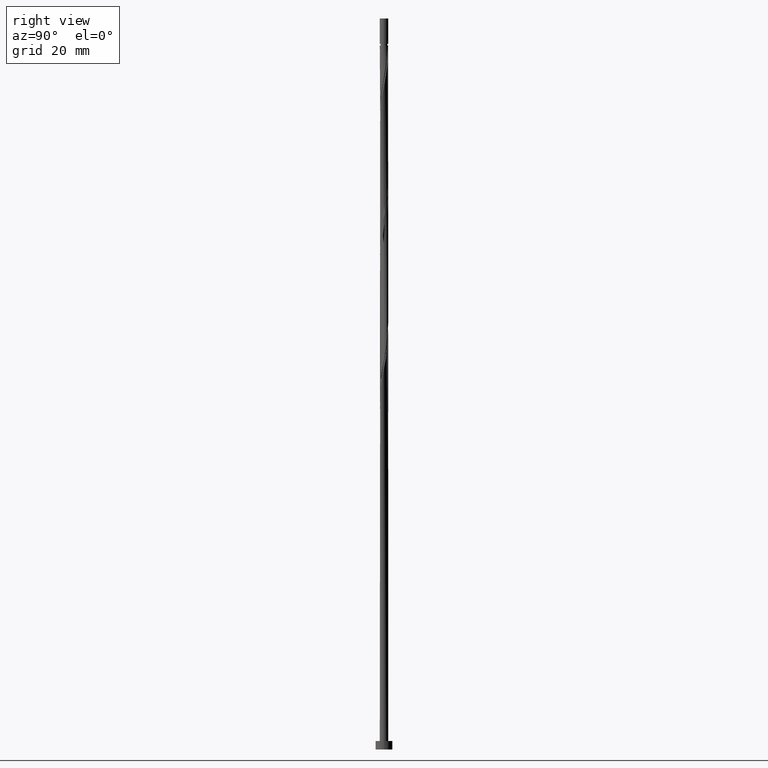
[diagram: clean part render]
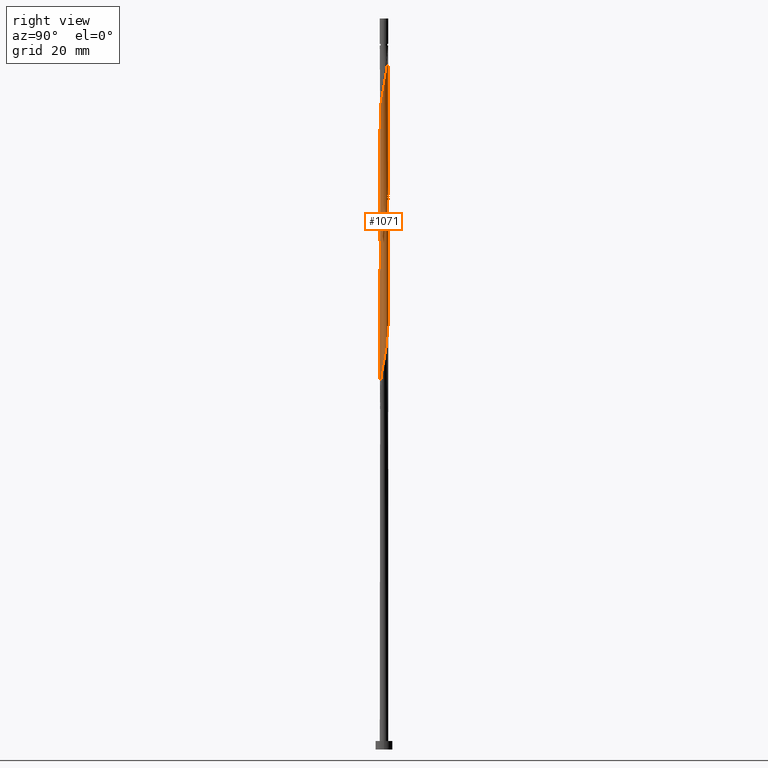
[diagram: same view with one face highlighted and labeled with its STEP entity id]
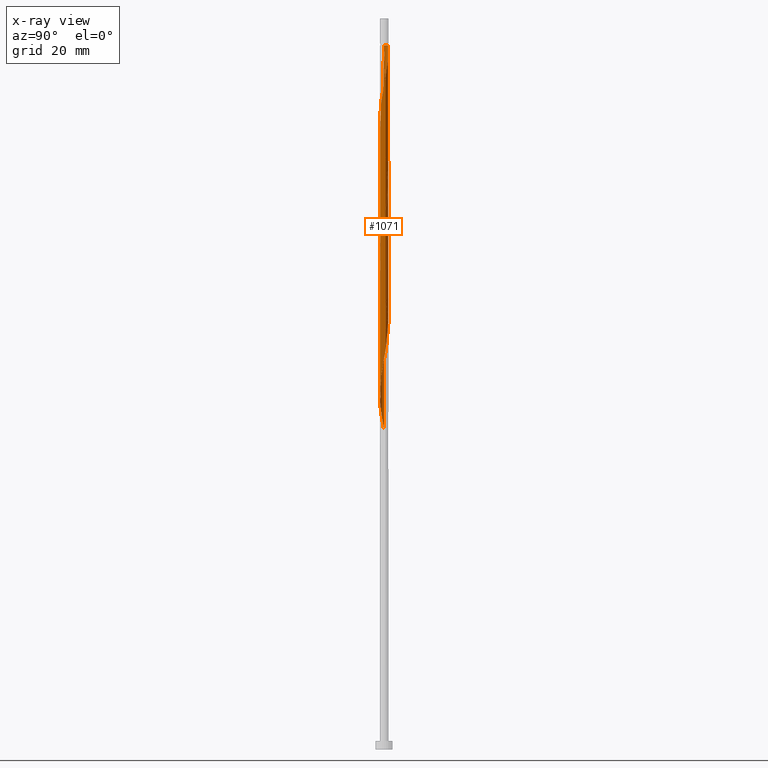
[diagram: x-ray of the same camera — body ghosted, the highlighted face saturated]
A machine part, right view. The second image highlights one B-rep face of the part: STEP entity #1071.
The next image is the same camera in x-ray: the body ghosted, the highlighted face saturated — about 0% of this face is hidden behind the body in this view.
In plain terms, the highlighted cylindrical surface (bore or boss wall) has radius 1 mm, axis along (-0, -0, -1).
Its self-contained STEP definition (entity closure, byte-faithful):
#2 = CARTESIAN_POINT ( 'NONE',  ( 0.4458594766673680820, 0.8951029700910975162, 98.06985771338651148 ) ) ;
#11 = CARTESIAN_POINT ( 'NONE',  ( 0.5522521727681091175, -0.8336771183575245603, 86.95874660227542563 ) ) ;
#35 = CARTESIAN_POINT ( 'NONE',  ( 0.9063824962005113672, -0.4424964979548786648, 154.3198577133865399 ) ) ;
#36 = ORIENTED_EDGE ( 'NONE', *, *, #1288, .T. ) ;
#44 = CARTESIAN_POINT ( 'NONE',  ( -0.06997803978568405137, 1.006198516232634788, 165.4309688244976826 ) ) ;
#46 = CARTESIAN_POINT ( 'NONE',  ( -1.000000000000001332, -6.990894227392392190E-16, 140.0618466137320013 ) ) ;
#52 = CARTESIAN_POINT ( 'NONE',  ( 0.7609717405145360880, -0.6620078475813410135, 152.9309688244976257 ) ) ;
#58 = DIRECTION ( 'NONE',  ( -1.000000000000000000, 0.000000000000000000, 0.000000000000000000 ) ) ;
#60 = CARTESIAN_POINT ( 'NONE',  ( 0.7492061519980856010, 0.6623368793961457168, 160.5698577133865967 ) ) ;
#78 = CARTESIAN_POINT ( 'NONE',  ( -0.6620078475813406804, 0.7609717405145367541, 104.3198577133865399 ) ) ;
#81 = VECTOR ( 'NONE', #1470, 1000.000000000000000 ) ;
#86 = CARTESIAN_POINT ( 'NONE',  ( 0.1989974874213304434, 0.9800000000000007594, 99.45874660227543984 ) ) ;
#98 = VERTEX_POINT ( 'NONE', #302 ) ;
#108 = CARTESIAN_POINT ( 'NONE',  ( 0.6620078475813405694, -0.7609717405145368652, 87.65319104671989692 ) ) ;
#113 = VERTEX_POINT ( 'NONE', #46 ) ;
#114 = CARTESIAN_POINT ( 'NONE',  ( 1.000000000000001776, 1.207518093822335680E-15, 125.5223132574855640 ) ) ;
#116 = CARTESIAN_POINT ( 'NONE',  ( 0.06997803978568188643, -1.006198516232634788, 148.7643021578309970 ) ) ;
#118 = ORIENTED_EDGE ( 'NONE', *, *, #401, .T. ) ;
#120 = CARTESIAN_POINT ( 'NONE',  ( -0.1928297432528294497, 0.9900247826383190564, 134.8754132689420828 ) ) ;
#123 = CARTESIAN_POINT ( 'NONE',  ( 0.7492061519980848239, -0.6623368793961468270, 88.34763549116431136 ) ) ;
#130 = CARTESIAN_POINT ( 'NONE',  ( -0.9981116494354770330, -0.06142585173357345552, 75.84763549116429715 ) ) ;
#136 = CARTESIAN_POINT ( 'NONE',  ( 0.8336771183575244493, 0.5522521727681093395, 95.29207993560875423 ) ) ;
#154 = CARTESIAN_POINT ( 'NONE',  ( -1.000000000000000000, 0.000000000000000000, 172.5099999999999909 ) ) ;
#196 = CARTESIAN_POINT ( 'NONE',  ( -1.000000000000000000, 0.000000000000000000, 172.5099999999999909 ) ) ;
#209 = CARTESIAN_POINT ( 'NONE',  ( -0.4424964979548783872, 0.9063824962005120334, 102.9309688244976400 ) ) ;
#218 = CARTESIAN_POINT ( 'NONE',  ( 0.06997803978568227501, 1.006198516232635010, 100.1531910467198685 ) ) ;
#226 = CARTESIAN_POINT ( 'NONE',  ( -0.06997803978568256644, -1.006198516232635010, 116.8198577133865683 ) ) ;
#232 = CARTESIAN_POINT ( 'NONE',  ( 0.4424964979548781097, -0.9063824962005121444, 119.5976354911643398 ) ) ;
#237 = CARTESIAN_POINT ( 'NONE',  ( 0.3176631206038535438, -0.9482036394194154338, 118.9031910467198685 ) ) ;
#243 = CARTESIAN_POINT ( 'NONE',  ( 0.06997803978568227501, 1.006198516232635010, 133.4865243800532255 ) ) ;
#247 = CARTESIAN_POINT ( 'NONE',  ( -0.4424964979548786648, -0.9063824962005115893, 145.9865243800532255 ) ) ;
#251 = CARTESIAN_POINT ( 'NONE',  ( -0.8951029700910976272, 0.4458594766673675824, 139.7365243800532255 ) ) ;
#252 = CARTESIAN_POINT ( 'NONE',  ( -0.7609717405145368652, -0.6620078475813406804, 79.31985771338656832 ) ) ;
#258 = CARTESIAN_POINT ( 'NONE',  ( 0.6623368793961468270, 0.7492061519980847129, 130.0143021578309686 ) ) ;
#259 = CARTESIAN_POINT ( 'NONE',  ( -0.3176631206038542654, -0.9482036394194152118, 146.6809688244977110 ) ) ;
#263 = CARTESIAN_POINT ( 'NONE',  ( -0.9538014837673658430, 0.3280169350569784315, 140.4309688244976542 ) ) ;
#264 = VECTOR ( 'NONE', #1510, 1000.000000000000000 ) ;
#265 = VERTEX_POINT ( 'NONE', #1204 ) ;
#266 = CARTESIAN_POINT ( 'NONE',  ( 0.1989974874213301104, -0.9800000000000002043, 149.4587466022754541 ) ) ;
#275 = CARTESIAN_POINT ( 'NONE',  ( 0.000000000000000000, 0.000000000000000000, 172.5099999999999909 ) ) ;
#276 = DIRECTION ( 'NONE',  ( -1.000000000000000000, 0.000000000000000000, 0.000000000000000000 ) ) ;
#293 = CARTESIAN_POINT ( 'NONE',  ( 0.9981116494354770330, 0.06142585173357311551, 125.8476354911643114 ) ) ;
#297 = CARTESIAN_POINT ( 'NONE',  ( 0.9800000000000002043, 0.1989974874213300826, 157.7920799356088253 ) ) ;
#302 = CARTESIAN_POINT ( 'NONE',  ( -0.1989974874213630285, 0.9800000000002668799, 166.1254132689421681 ) ) ;
#309 = CARTESIAN_POINT ( 'NONE',  ( -0.1989974874213630285, 0.9800000000002668799, 166.1254132689421397 ) ) ;
#327 = VECTOR ( 'NONE', #955, 1000.000000000000000 ) ;
#350 = CARTESIAN_POINT ( 'NONE',  ( -0.1989974874213303602, -0.9800000000000007594, 116.1254132689420970 ) ) ;
#370 = CARTESIAN_POINT ( 'NONE',  ( -1.006198516232635010, 0.06997803978568252481, 108.4865243800532113 ) ) ;
#377 = CARTESIAN_POINT ( 'NONE',  ( -0.7492061519980850459, 0.6623368793961466050, 138.3476354911643114 ) ) ;
#380 = CARTESIAN_POINT ( 'NONE',  ( -0.8951029700910976272, -0.4458594766673671939, 142.5143021578309401 ) ) ;
#389 = CARTESIAN_POINT ( 'NONE',  ( 0.6623368793961468270, 0.7492061519980847129, 96.68096882449763996 ) ) ;
#393 = CARTESIAN_POINT ( 'NONE',  ( -0.4424964979548783872, 0.9063824962005120334, 136.2643021578309686 ) ) ;
#397 = CARTESIAN_POINT ( 'NONE',  ( -1.000000000000001776, 0.1005037815259250816, 141.6555535549628928 ) ) ;
#398 = CARTESIAN_POINT ( 'NONE',  ( -1.000000000000001776, 1.342102153814917990E-15, 75.52231325748550717 ) ) ;
#401 = EDGE_CURVE ( 'NONE', #1527, #818, #758, .T. ) ;
#410 = CARTESIAN_POINT ( 'NONE',  ( -0.5637020182777566779, -0.8364044564148297445, 80.70874660227543984 ) ) ;
#416 =( BOUNDED_CURVE ( )  B_SPLINE_CURVE ( 2, ( #1003, #900, #655, #1485, #380, #1356, #1136, #1625, #1368, #247, #259, #778, #1142, #116, #266, #1614, #785, #1052, #1547, #52, #797, #35, #1045, #692, #458, #1420, #297, #1196, #1398, #824, #60, #1295, #1072, #956, #1267, #1156, #942, #44, #309 ),
 .UNSPECIFIED., .F., .T. ) 
 B_SPLINE_CURVE_WITH_KNOTS ( ( 3, 2, 2, 2, 2, 2, 2, 2, 2, 2, 2, 2, 2, 2, 2, 2, 2, 2, 2, 3 ),
 ( 0.5545317669814456840, 0.5625000000000000000, 0.5729166666666667407, 0.5833333333333332593, 0.5937500000000000000, 0.6041666666666667407, 0.6145833333333333703, 0.6250000000000001110, 0.6354166666666668517, 0.6458333333333333703, 0.6562500000000001110, 0.6666666666666668517, 0.6770833333333333703, 0.6875000000000001110, 0.6979166666666669627, 0.7083333333333334814, 0.7187500000000002220, 0.7291666666666669627, 0.7395833333333334814, 0.7500000000000002220 ),
 .UNSPECIFIED. ) 
 CURVE ( )  GEOMETRIC_REPRESENTATION_ITEM ( )  RATIONAL_B_SPLINE_CURVE ( ( 0.9062941362546443891, 0.9031415850403479162, 0.9090909090909236046, 0.9013135103398420833, 0.9090909090909236046, 0.9013135103398420833, 0.9090909090909236046, 0.9013135103398420833, 0.9090909090909236046, 0.9013135103398420833, 0.9090909090909236046, 0.9013135103398420833, 0.9090909090909236046, 0.9013135103398420833, 0.9090909090909236046, 0.9013135103398420833, 0.9090909090909236046, 0.9013135103398420833, 0.9090909090909236046, 0.9013135103398420833, 0.9090909090909236046, 0.9013135103398420833, 0.9090909090909236046, 0.9013135103398420833, 0.9090909090909236046, 0.9013135103398420833, 0.9090909090909236046, 0.9013135103398420833, 0.9090909090909236046, 0.9013135103398420833, 0.9090909090909236046, 0.9013135103398420833, 0.9090909090909236046, 0.9013135103398420833, 0.9090909090909236046, 0.9013135103398420833, 0.9090909090909236046, 0.9013135103398418613, 0.9090909090909238266 ) ) 
 REPRESENTATION_ITEM ( '' )  );
#420 = EDGE_LOOP ( 'NONE', ( #773, #750, #473, #36, #1268, #1249, #118, #839 ) ) ;
#427 = CARTESIAN_POINT ( 'NONE',  ( 0.9482036394194157669, 0.3176631206038533772, 127.2365243800531971 ) ) ;
#458 = CARTESIAN_POINT ( 'NONE',  ( 0.9981116494354764779, -0.06142585173357436451, 156.4031910467198543 ) ) ;
#467 = CARTESIAN_POINT ( 'NONE',  ( 1.000000000000000000, 1.224646799147353207E-16, 172.5099999999999909 ) ) ;
#473 = ORIENTED_EDGE ( 'NONE', *, *, #592, .F. ) ;
#476 = CARTESIAN_POINT ( 'NONE',  ( -0.06142585173357356654, 0.9981116494354770330, 100.8476354911643398 ) ) ;
#481 = CARTESIAN_POINT ( 'NONE',  ( -0.9063824962005121444, -0.4424964979548781097, 111.2643021578309970 ) ) ;
#487 = EDGE_CURVE ( 'NONE', #818, #816, #1345, .T. ) ;
#489 = CARTESIAN_POINT ( 'NONE',  ( -0.3280169350569786535, -0.9538014837673658430, 115.4309688244976542 ) ) ;
#496 = EDGE_CURVE ( 'NONE', #265, #98, #1306, .T. ) ;
#499 = CARTESIAN_POINT ( 'NONE',  ( 0.8951029700910975162, -0.4458594766673680820, 123.0698577133865541 ) ) ;
#507 = CARTESIAN_POINT ( 'NONE',  ( 0.5637020182777571220, 0.8364044564148295224, 97.37541326894209703 ) ) ;
#520 = CARTESIAN_POINT ( 'NONE',  ( -0.1989974874213303602, -0.9800000000000007594, 82.79207993560874002 ) ) ;
#527 = CARTESIAN_POINT ( 'NONE',  ( 0.9538014837673656210, -0.3280169350569790976, 90.43096882449765417 ) ) ;
#536 = CARTESIAN_POINT ( 'NONE',  ( -1.000000000000001776, -3.813215033123163800E-16, 142.1889799241521928 ) ) ;
#539 = CARTESIAN_POINT ( 'NONE',  ( 0.9063824962005122554, 0.4424964979548778321, 94.59763549116433978 ) ) ;
#548 = AXIS2_PLACEMENT_3D ( 'NONE', #646, #1123, #276 ) ;
#556 = CARTESIAN_POINT ( 'NONE',  ( 0.9900247826383190564, 0.1928297432528287836, 126.5420799356087542 ) ) ;
#592 = EDGE_CURVE ( 'NONE', #113, #98, #416, .T. ) ;
#621 = CARTESIAN_POINT ( 'NONE',  ( 0.9800000000000007594, -0.1989974874213303879, 124.4587466022754398 ) ) ;
#633 = CARTESIAN_POINT ( 'NONE',  ( 0.8951029700910975162, -0.4458594766673680820, 89.73652438005319709 ) ) ;
#639 = CARTESIAN_POINT ( 'NONE',  ( 0.1989974874213304434, 0.9800000000000007594, 132.7920799356087684 ) ) ;
#646 = CARTESIAN_POINT ( 'NONE',  ( 0.000000000000000000, 0.000000000000000000, 166.1254132689420828 ) ) ;
#653 = CARTESIAN_POINT ( 'NONE',  ( 0.7609717405145368652, 0.6620078475813405694, 129.3198577133865399 ) ) ;
#655 = CARTESIAN_POINT ( 'NONE',  ( -0.9800000000000002043, -0.1989974874213301659, 141.1254132689421397 ) ) ;
#663 = CARTESIAN_POINT ( 'NONE',  ( -0.4458594766673675824, -0.8951029700910976272, 81.40319104671986850 ) ) ;
#692 = CARTESIAN_POINT ( 'NONE',  ( 0.9900247826383185012, -0.1928297432528299216, 155.7087466022753972 ) ) ;
#704 = CARTESIAN_POINT ( 'NONE',  ( 1.000000000000000000, 1.224646799147353207E-16, 166.1254132689421681 ) ) ;
#726 = CARTESIAN_POINT ( 'NONE',  ( 0.8364044564148296335, -0.5637020182777571220, 122.3754132689420686 ) ) ;
#734 = CARTESIAN_POINT ( 'NONE',  ( -0.9538014837673658430, 0.3280169350569784315, 107.0976354911643256 ) ) ;
#749 = CARTESIAN_POINT ( 'NONE',  ( -0.9482036394194154338, -0.3176631206038535993, 110.5698577133865541 ) ) ;
#750 = ORIENTED_EDGE ( 'NONE', *, *, #496, .T. ) ;
#758 = LINE ( 'NONE', #467, #81 ) ;
#766 = CARTESIAN_POINT ( 'NONE',  ( -0.9063824962005121444, -0.4424964979548781097, 77.93096882449766838 ) ) ;
#771 = CARTESIAN_POINT ( 'NONE',  ( 0.1928297432528288391, -0.9900247826383190564, 84.87541326894208282 ) ) ;
#773 = ORIENTED_EDGE ( 'NONE', *, *, #1181, .F. ) ;
#778 = CARTESIAN_POINT ( 'NONE',  ( -0.1928297432528295052, -0.9900247826383187233, 147.3754132689420260 ) ) ;
#784 = CARTESIAN_POINT ( 'NONE',  ( -0.06142585173357356654, 0.9981116494354770330, 134.1809688244976826 ) ) ;
#785 = CARTESIAN_POINT ( 'NONE',  ( 0.4458594766673669163, -0.8951029700910977382, 150.8476354911643114 ) ) ;
#797 = CARTESIAN_POINT ( 'NONE',  ( 0.8336771183575240052, -0.5522521727681098946, 153.6254132689420828 ) ) ;
#815 = CARTESIAN_POINT ( 'NONE',  ( 0.8336771183575244493, 0.5522521727681093395, 128.6254132689420544 ) ) ;
#816 = VERTEX_POINT ( 'NONE', #1239 ) ;
#818 = VERTEX_POINT ( 'NONE', #114 ) ;
#824 = CARTESIAN_POINT ( 'NONE',  ( 0.8364044564148299665, 0.5637020182777559008, 159.8754132689420260 ) ) ;
#829 = FACE_OUTER_BOUND ( 'NONE', #420, .T. ) ;
#839 = ORIENTED_EDGE ( 'NONE', *, *, #950, .F. ) ;
#850 = CARTESIAN_POINT ( 'NONE',  ( -0.8336771183575242272, -0.5522521727681094506, 111.9587466022754114 ) ) ;
#858 = CARTESIAN_POINT ( 'NONE',  ( -0.1928297432528294497, 0.9900247826383190564, 101.5420799356087684 ) ) ;
#865 = CARTESIAN_POINT ( 'NONE',  ( -0.9800000000000007594, 0.1989974874213302769, 107.7920799356087969 ) ) ;
#867 =( BOUNDED_CURVE ( )  B_SPLINE_CURVE ( 2, ( #536, #397, #1001, #263, #251, #903, #377, #883, #1251, #393, #1353, #120, #784, #243, #639, #899, #1613, #1367, #258, #653, #815, #1062, #427, #556, #293, #923, #1051 ),
 .UNSPECIFIED., .F., .T. ) 
 B_SPLINE_CURVE_WITH_KNOTS ( ( 3, 2, 2, 2, 2, 2, 2, 2, 2, 2, 2, 2, 2, 3 ),
 ( 0.4295317669814460726, 0.4375000000000000000, 0.4479166666666666852, 0.4583333333333333148, 0.4687500000000000000, 0.4791666666666666852, 0.4895833333333333148, 0.5000000000000000000, 0.5104166666666666297, 0.5208333333333333703, 0.5312500000000000000, 0.5416666666666666297, 0.5520833333333333703, 0.5545317669814459061 ),
 .UNSPECIFIED. ) 
 CURVE ( )  GEOMETRIC_REPRESENTATION_ITEM ( )  RATIONAL_B_SPLINE_CURVE ( ( 0.9062941362546343971, 0.9031415850403382573, 0.9090909090909138346, 0.9013135103398322023, 0.9090909090909138346, 0.9013135103398322023, 0.9090909090909138346, 0.9013135103398322023, 0.9090909090909138346, 0.9013135103398322023, 0.9090909090909138346, 0.9013135103398322023, 0.9090909090909138346, 0.9013135103398322023, 0.9090909090909138346, 0.9013135103398322023, 0.9090909090909138346, 0.9013135103398322023, 0.9090909090909138346, 0.9013135103398322023, 0.9090909090909138346, 0.9013135103398322023, 0.9090909090909138346, 0.9013135103398322023, 0.9090909090909138346, 0.9072628343904078907, 0.9062941362546343971 ) ) 
 REPRESENTATION_ITEM ( '' )  );
#879 = CARTESIAN_POINT ( 'NONE',  ( -0.7492061519980850459, 0.6623368793961466050, 105.0143021578309686 ) ) ;
#883 = CARTESIAN_POINT ( 'NONE',  ( -0.6620078475813406804, 0.7609717405145367541, 137.6531910467198827 ) ) ;
#886 = CARTESIAN_POINT ( 'NONE',  ( 0.9482036394194157669, 0.3176631206038533772, 93.90319104671988271 ) ) ;
#899 = CARTESIAN_POINT ( 'NONE',  ( 0.3280169350569792086, 0.9538014837673656210, 132.0976354911643114 ) ) ;
#900 = CARTESIAN_POINT ( 'NONE',  ( -1.000000000000002442, -0.1005037815259204187, 140.5952729829212728 ) ) ;
#903 = CARTESIAN_POINT ( 'NONE',  ( -0.8364044564148297445, 0.5637020182777565669, 139.0420799356088253 ) ) ;
#914 = CARTESIAN_POINT ( 'NONE',  ( 0.9800000000000007594, -0.1989974874213303879, 91.12541326894208282 ) ) ;
#923 = CARTESIAN_POINT ( 'NONE',  ( 1.000000000000001776, 0.03074195165767222571, 125.6854769455136562 ) ) ;
#942 = CARTESIAN_POINT ( 'NONE',  ( 0.06142585173357440614, 0.9981116494354764779, 164.7365243800531687 ) ) ;
#950 = EDGE_CURVE ( 'NONE', #1348, #818, #867, .T. ) ;
#955 = DIRECTION ( 'NONE',  ( -0.000000000000000000, -0.000000000000000000, -1.000000000000000000 ) ) ;
#956 = CARTESIAN_POINT ( 'NONE',  ( 0.4424964979548787758, 0.9063824962005113672, 162.6531910467198259 ) ) ;
#965 = CARTESIAN_POINT ( 'NONE',  ( 0.06142585173357317102, -0.9981116494354770330, 117.5143021578309828 ) ) ;
#986 = CARTESIAN_POINT ( 'NONE',  ( -0.4458594766673675824, -0.8951029700910976272, 114.7365243800531829 ) ) ;
#996 = CARTESIAN_POINT ( 'NONE',  ( 0.6620078475813405694, -0.7609717405145368652, 120.9865243800532113 ) ) ;
#1001 = CARTESIAN_POINT ( 'NONE',  ( -0.9800000000000007594, 0.1989974874213302769, 141.1254132689420544 ) ) ;
#1003 = CARTESIAN_POINT ( 'NONE',  ( -1.000000000000001332, -6.990894227392392190E-16, 140.0618466137320013 ) ) ;
#1010 = CARTESIAN_POINT ( 'NONE',  ( 0.9900247826383190564, 0.1928297432528287836, 93.20874660227542563 ) ) ;
#1021 = CARTESIAN_POINT ( 'NONE',  ( 0.4424964979548781097, -0.9063824962005121444, 86.26430215783096855 ) ) ;
#1032 = CARTESIAN_POINT ( 'NONE',  ( -0.3280169350569786535, -0.9538014837673658430, 82.09763549116433978 ) ) ;
#1045 = CARTESIAN_POINT ( 'NONE',  ( 0.9482036394194152118, -0.3176631206038544319, 155.0143021578310254 ) ) ;
#1049 = CARTESIAN_POINT ( 'NONE',  ( -1.000000000000001776, -3.813215033123163800E-16, 142.1889799241521928 ) ) ;
#1051 = CARTESIAN_POINT ( 'NONE',  ( 1.000000000000001776, 1.207518093822335877E-15, 125.5223132574855640 ) ) ;
#1052 = CARTESIAN_POINT ( 'NONE',  ( 0.5637020182777559008, -0.8364044564148299665, 151.5420799356087684 ) ) ;
#1062 = CARTESIAN_POINT ( 'NONE',  ( 0.9063824962005122554, 0.4424964979548778321, 127.9309688244976542 ) ) ;
#1071 = ADVANCED_FACE ( 'NONE', ( #829 ), #1386, .T. ) ;
#1072 = CARTESIAN_POINT ( 'NONE',  ( 0.5522521727681097836, 0.8336771183575242272, 161.9587466022753972 ) ) ;
#1076 = LINE ( 'NONE', #196, #327 ) ;
#1086 = CARTESIAN_POINT ( 'NONE',  ( 0.1928297432528288391, -0.9900247826383190564, 118.2087466022754683 ) ) ;
#1102 = CARTESIAN_POINT ( 'NONE',  ( -0.6623368793961468270, -0.7492061519980848239, 113.3476354911643114 ) ) ;
#1108 = CARTESIAN_POINT ( 'NONE',  ( 0.7492061519980848239, -0.6623368793961468270, 121.6809688244976684 ) ) ;
#1114 = CARTESIAN_POINT ( 'NONE',  ( -0.8951029700910976272, 0.4458594766673675824, 106.4031910467198401 ) ) ;
#1123 = DIRECTION ( 'NONE',  ( -0.000000000000000000, -0.000000000000000000, -1.000000000000000000 ) ) ;
#1130 = CARTESIAN_POINT ( 'NONE',  ( 0.06142585173357317102, -0.9981116494354770330, 84.18096882449763996 ) ) ;
#1136 = CARTESIAN_POINT ( 'NONE',  ( -0.7492061519980850459, -0.6623368793961459389, 143.9031910467198827 ) ) ;
#1142 = CARTESIAN_POINT ( 'NONE',  ( -0.06142585173357380940, -0.9981116494354764779, 148.0698577133865115 ) ) ;
#1148 = CARTESIAN_POINT ( 'NONE',  ( -0.6623368793961468270, -0.7492061519980848239, 80.01430215783099698 ) ) ;
#1156 = CARTESIAN_POINT ( 'NONE',  ( 0.1928297432528299771, 0.9900247826383185012, 164.0420799356087684 ) ) ;
#1181 = EDGE_CURVE ( 'NONE', #265, #1348, #1076, .T. ) ;
#1196 = CARTESIAN_POINT ( 'NONE',  ( 0.9538014837673659541, 0.3280169350569778763, 158.4865243800532255 ) ) ;
#1204 = CARTESIAN_POINT ( 'NONE',  ( -0.9999999999999917843, 0.000000000000000000, 166.1254132689420828 ) ) ;
#1209 = CARTESIAN_POINT ( 'NONE',  ( -0.3176631206038537658, 0.9482036394194154338, 102.2365243800532113 ) ) ;
#1217 = CARTESIAN_POINT ( 'NONE',  ( 0.9538014837673656210, -0.3280169350569790976, 123.7643021578310254 ) ) ;
#1228 = CARTESIAN_POINT ( 'NONE',  ( -0.9981116494354770330, -0.06142585173357345552, 109.1809688244976542 ) ) ;
#1235 = CARTESIAN_POINT ( 'NONE',  ( 0.9981116494354770330, 0.06142585173357311551, 92.51430215783101119 ) ) ;
#1239 = CARTESIAN_POINT ( 'NONE',  ( -1.000000000000001776, 1.342102153814917990E-15, 75.52231325748550717 ) ) ;
#1240 = CARTESIAN_POINT ( 'NONE',  ( 0.7609717405145368652, 0.6620078475813405694, 95.98652438005321130 ) ) ;
#1247 = CARTESIAN_POINT ( 'NONE',  ( -0.9900247826383190564, -0.1928297432528291444, 76.54207993560878265 ) ) ;
#1249 = ORIENTED_EDGE ( 'NONE', *, *, #401, .F. ) ;
#1251 = CARTESIAN_POINT ( 'NONE',  ( -0.5522521727681096726, 0.8336771183575242272, 136.9587466022753972 ) ) ;
#1252 = CARTESIAN_POINT ( 'NONE',  ( -0.9482036394194154338, -0.3176631206038535993, 77.23652438005322551 ) ) ;
#1259 = CARTESIAN_POINT ( 'NONE',  ( 0.3176631206038535438, -0.9482036394194154338, 85.56985771338653990 ) ) ;
#1267 = CARTESIAN_POINT ( 'NONE',  ( 0.3176631206038545430, 0.9482036394194151008, 163.3476354911643398 ) ) ;
#1268 = ORIENTED_EDGE ( 'NONE', *, *, #487, .F. ) ;
#1279 = AXIS2_PLACEMENT_3D ( 'NONE', #275, #1301, #58 ) ;
#1283 = LINE ( 'NONE', #154, #264 ) ;
#1288 = EDGE_CURVE ( 'NONE', #113, #816, #1283, .T. ) ;
#1295 = CARTESIAN_POINT ( 'NONE',  ( 0.6620078475813412355, 0.7609717405145354219, 161.2643021578309401 ) ) ;
#1301 = DIRECTION ( 'NONE',  ( -0.000000000000000000, -0.000000000000000000, -1.000000000000000000 ) ) ;
#1306 = CIRCLE ( 'NONE', #548, 0.9999999999999917843 ) ;
#1320 = CARTESIAN_POINT ( 'NONE',  ( -0.5522521727681096726, 0.8336771183575242272, 103.6254132689420828 ) ) ;
#1345 =( BOUNDED_CURVE ( )  B_SPLINE_CURVE ( 2, ( #1588, #1347, #621, #1217, #499, #726, #1108, #996, #1595, #232, #237, #1086, #965, #226, #350, #489, #986, #1582, #1102, #1477, #850, #481, #749, #1447, #1228, #370, #865, #734, #1114, #1603, #879, #78, #1320, #209, #1209, #858, #476, #218, #86, #1497, #2, #507, #389, #1240, #136, #539, #886, #1010, #1235, #1491, #914, #527, #633, #1375, #123, #108, #11, #1021, #1259, #771, #1130, #1502, #520, #1032, #663, #410, #1148, #252, #1515, #766, #1252, #1247, #130, #1390, #398 ),
 .UNSPECIFIED., .F., .T. ) 
 B_SPLINE_CURVE_WITH_KNOTS ( ( 3, 2, 2, 2, 2, 2, 2, 2, 2, 2, 2, 2, 2, 2, 2, 2, 2, 2, 2, 2, 2, 2, 2, 2, 2, 2, 2, 2, 2, 2, 2, 2, 2, 2, 2, 2, 2, 3 ),
 ( 0.5545317669814459061, 0.5625000000000000000, 0.5729166666666666297, 0.5833333333333333703, 0.5937500000000000000, 0.6041666666666666297, 0.6145833333333333703, 0.6250000000000000000, 0.6354166666666666297, 0.6458333333333333703, 0.6562500000000000000, 0.6666666666666666297, 0.6770833333333333703, 0.6875000000000000000, 0.6979166666666666297, 0.7083333333333333703, 0.7187500000000000000, 0.7291666666666666297, 0.7395833333333333703, 0.7500000000000000000, 0.7604166666666666297, 0.7708333333333333703, 0.7812500000000000000, 0.7916666666666666297, 0.8020833333333333703, 0.8125000000000000000, 0.8229166666666666297, 0.8333333333333333703, 0.8437500000000000000, 0.8541666666666666297, 0.8645833333333333703, 0.8750000000000000000, 0.8854166666666666297, 0.8958333333333333703, 0.9062500000000000000, 0.9166666666666666297, 0.9270833333333333703, 0.9295317669814461281 ),
 .UNSPECIFIED. ) 
 CURVE ( )  GEOMETRIC_REPRESENTATION_ITEM ( )  RATIONAL_B_SPLINE_CURVE ( ( 0.9062941362546343971, 0.9031415850403381462, 0.9090909090909138346, 0.9013135103398322023, 0.9090909090909138346, 0.9013135103398322023, 0.9090909090909138346, 0.9013135103398322023, 0.9090909090909138346, 0.9013135103398322023, 0.9090909090909138346, 0.9013135103398322023, 0.9090909090909138346, 0.9013135103398322023, 0.9090909090909138346, 0.9013135103398322023, 0.9090909090909138346, 0.9013135103398322023, 0.9090909090909138346, 0.9013135103398322023, 0.9090909090909138346, 0.9013135103398322023, 0.9090909090909138346, 0.9013135103398322023, 0.9090909090909138346, 0.9013135103398322023, 0.9090909090909138346, 0.9013135103398322023, 0.9090909090909138346, 0.9013135103398322023, 0.9090909090909138346, 0.9013135103398322023, 0.9090909090909138346, 0.9013135103398322023, 0.9090909090909138346, 0.9013135103398322023, 0.9090909090909138346, 0.9013135103398322023, 0.9090909090909138346, 0.9013135103398322023, 0.9090909090909138346, 0.9013135103398322023, 0.9090909090909138346, 0.9013135103398322023, 0.9090909090909138346, 0.9013135103398322023, 0.9090909090909138346, 0.9013135103398322023, 0.9090909090909138346, 0.9013135103398322023, 0.9090909090909138346, 0.9013135103398322023, 0.9090909090909138346, 0.9013135103398322023, 0.9090909090909138346, 0.9013135103398322023, 0.9090909090909138346, 0.9013135103398322023, 0.9090909090909138346, 0.9013135103398322023, 0.9090909090909138346, 0.9013135103398322023, 0.9090909090909138346, 0.9013135103398322023, 0.9090909090909138346, 0.9013135103398322023, 0.9090909090909138346, 0.9013135103398322023, 0.9090909090909138346, 0.9013135103398322023, 0.9090909090909138346, 0.9013135103398322023, 0.9090909090909138346, 0.9072628343904076686, 0.9062941362546341750 ) ) 
 REPRESENTATION_ITEM ( '' )  );
#1347 = CARTESIAN_POINT ( 'NONE',  ( 1.000000000000002220, -0.1005037815259225698, 124.9888868882962356 ) ) ;
#1348 = VERTEX_POINT ( 'NONE', #1049 ) ;
#1353 = CARTESIAN_POINT ( 'NONE',  ( -0.3176631206038537658, 0.9482036394194154338, 135.5698577133865399 ) ) ;
#1356 = CARTESIAN_POINT ( 'NONE',  ( -0.8364044564148296335, -0.5637020182777562338, 143.2087466022754256 ) ) ;
#1367 = CARTESIAN_POINT ( 'NONE',  ( 0.5637020182777571220, 0.8364044564148295224, 130.7087466022754256 ) ) ;
#1368 = CARTESIAN_POINT ( 'NONE',  ( -0.5522521727681096726, -0.8336771183575242272, 145.2920799356087969 ) ) ;
#1375 = CARTESIAN_POINT ( 'NONE',  ( 0.8364044564148296335, -0.5637020182777571220, 89.04207993560875423 ) ) ;
#1386 = CYLINDRICAL_SURFACE ( 'NONE', #1279, 1.000000000000000000 ) ;
#1390 = CARTESIAN_POINT ( 'NONE',  ( -1.000000000000001776, -0.03074195165766972423, 75.68547694551364202 ) ) ;
#1398 = CARTESIAN_POINT ( 'NONE',  ( 0.8951029700910977382, 0.4458594766673668608, 159.1809688244976257 ) ) ;
#1420 = CARTESIAN_POINT ( 'NONE',  ( 1.006198516232634566, 0.06997803978568133132, 157.0976354911642261 ) ) ;
#1447 = CARTESIAN_POINT ( 'NONE',  ( -0.9900247826383190564, -0.1928297432528291444, 109.8754132689421112 ) ) ;
#1470 = DIRECTION ( 'NONE',  ( -0.000000000000000000, -0.000000000000000000, -1.000000000000000000 ) ) ;
#1477 = CARTESIAN_POINT ( 'NONE',  ( -0.7609717405145368652, -0.6620078475813406804, 112.6531910467198685 ) ) ;
#1485 = CARTESIAN_POINT ( 'NONE',  ( -0.9538014837673659541, -0.3280169350569779874, 141.8198577133864831 ) ) ;
#1491 = CARTESIAN_POINT ( 'NONE',  ( 1.006198516232635010, -0.06997803978568262195, 91.81985771338655411 ) ) ;
#1497 = CARTESIAN_POINT ( 'NONE',  ( 0.3280169350569792086, 0.9538014837673656210, 98.76430215783099698 ) ) ;
#1502 = CARTESIAN_POINT ( 'NONE',  ( -0.06997803978568256644, -1.006198516232635010, 83.48652438005319709 ) ) ;
#1510 = DIRECTION ( 'NONE',  ( -0.000000000000000000, -0.000000000000000000, -1.000000000000000000 ) ) ;
#1515 = CARTESIAN_POINT ( 'NONE',  ( -0.8336771183575242272, -0.5522521727681094506, 78.62541326894208282 ) ) ;
#1527 = VERTEX_POINT ( 'NONE', #704 ) ;
#1547 = CARTESIAN_POINT ( 'NONE',  ( 0.6623368793961459389, -0.7492061519980852680, 152.2365243800532255 ) ) ;
#1582 = CARTESIAN_POINT ( 'NONE',  ( -0.5637020182777566779, -0.8364044564148297445, 114.0420799356087542 ) ) ;
#1588 = CARTESIAN_POINT ( 'NONE',  ( 1.000000000000001776, 1.207518093822335877E-15, 125.5223132574855640 ) ) ;
#1595 = CARTESIAN_POINT ( 'NONE',  ( 0.5522521727681091175, -0.8336771183575245603, 120.2920799356087542 ) ) ;
#1603 = CARTESIAN_POINT ( 'NONE',  ( -0.8364044564148297445, 0.5637020182777565669, 105.7087466022754398 ) ) ;
#1613 = CARTESIAN_POINT ( 'NONE',  ( 0.4458594766673680820, 0.8951029700910975162, 131.4031910467198827 ) ) ;
#1614 = CARTESIAN_POINT ( 'NONE',  ( 0.3280169350569779874, -0.9538014837673659541, 150.1531910467198543 ) ) ;
#1625 = CARTESIAN_POINT ( 'NONE',  ( -0.6620078475813410135, -0.7609717405145360880, 144.5976354911642261 ) ) ;